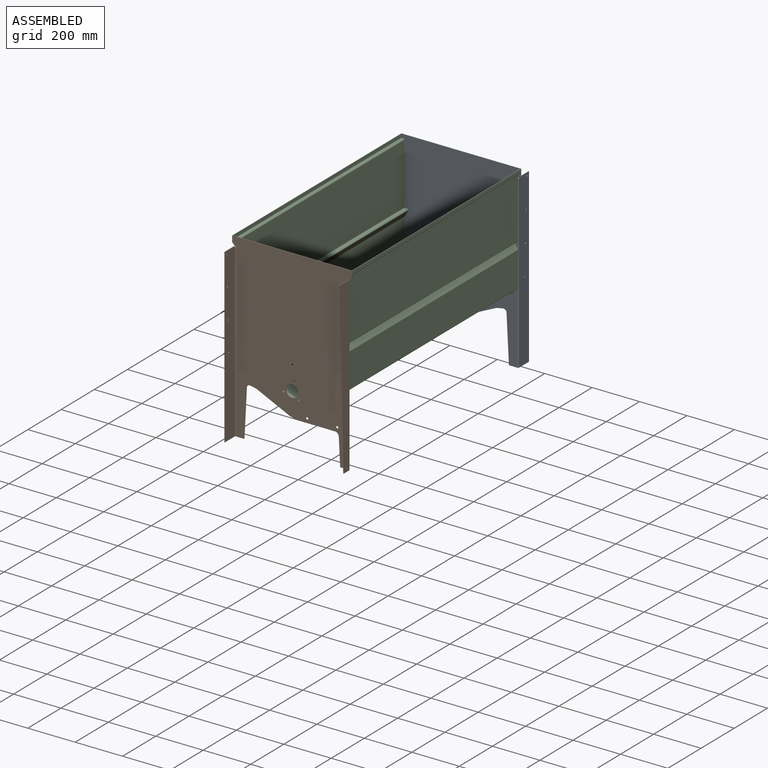
[diagram: assembled view]
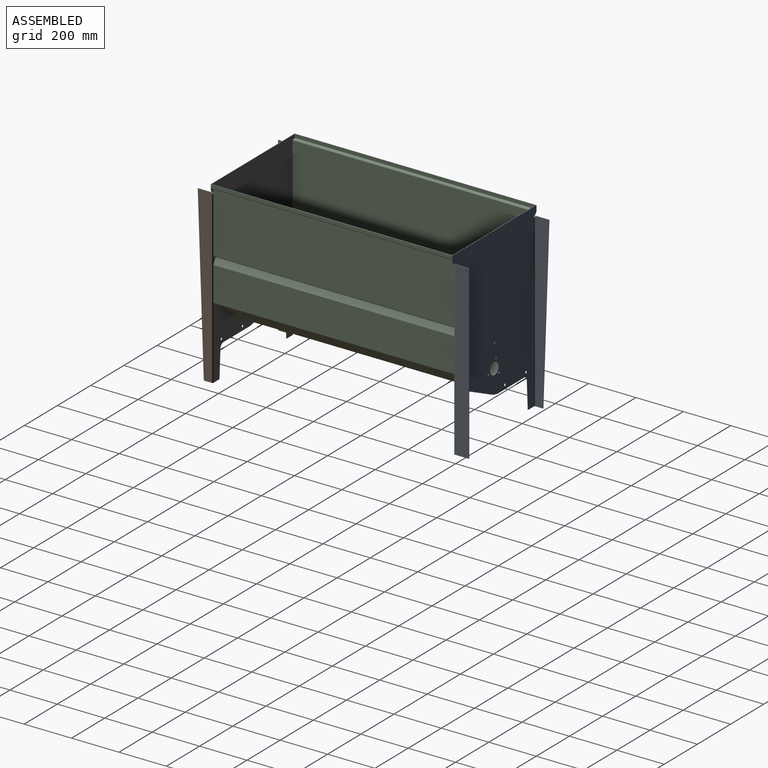
[diagram: assembled view, second angle]
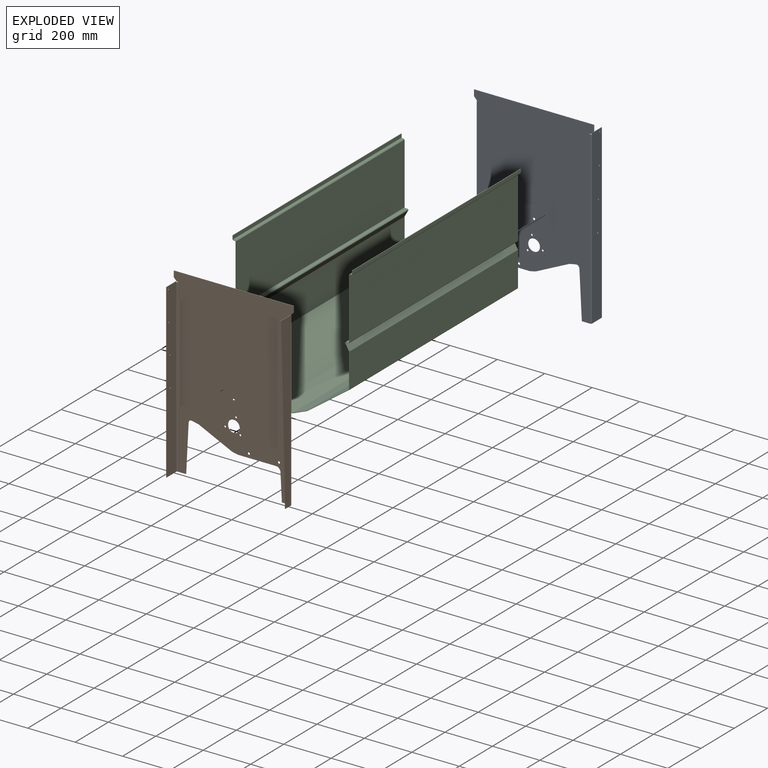
[diagram: exploded view]
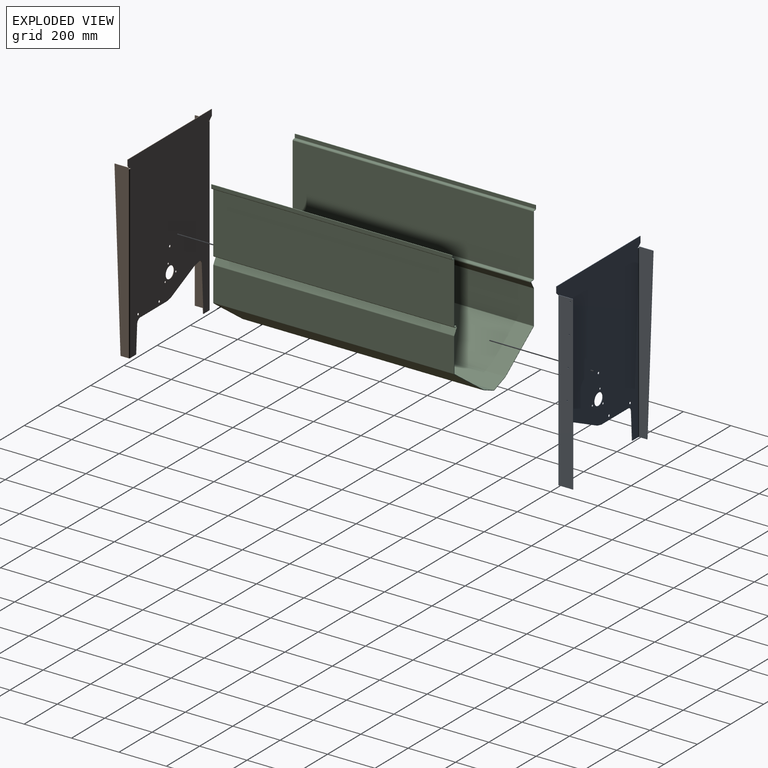
[diagram: exploded view, second angle]
ASSEMBLY  parts=3 mates=2
PART A: 55 faces, bbox 505.7x63.5x762 mm
  f0: plane 12.83x12.83mm, normal (0.71,0,-0.71), area 36.9mm2, adj f1,f2,f17,f30
  f1: plane 762x505.71mm, normal (0,1,0), area 300318.1mm2, adj f0,f3,f4,f5,f6,f7,f8,f9
  f2: plane 762x505.71mm, normal (0,-1,0), area 300318.1mm2, adj f0,f3,f4,f5,f6,f7,f8,f9
  f3: plane 35.81x2.03mm, normal (0,0,-1), area 72.8mm2, adj f1,f2,f4,f42
  f4: plane 198.12x10.2mm, normal (-1,0,-0.05), area 403.1mm2, adj f1,f2,f3,f5
  f5: cylinder r=12.7mm len=15.16mm, axis (0,-1,0), area 44.3mm2, adj f1,f2,f4,f6
  f6: plane 27.04x5.38mm, normal (0.2,0,-0.98), area 56mm2, adj f1,f2,f5,f7
  f7: plane 142.08x66.71mm, normal (0.43,0,-0.91), area 318.9mm2, adj f1,f2,f6,f8
  f8: plane 22.64x5.04mm, normal (0.22,0,-0.98), area 47.1mm2, adj f1,f2,f7,f9
  f9: cylinder r=19.05mm len=4.14mm, axis (0,-1,0), area 8.5mm2, adj f1,f2,f8,f10
  f10: plane 158.95x2.03mm, normal (0,0,-1), area 323mm2, adj f1,f2,f9,f11
  f11: cylinder r=19.05mm len=19.02mm, axis (0,-1,0), area 58.8mm2, adj f1,f2,f10,f12
  f12: plane 114.26x5.9mm, normal (1,0,-0.05), area 232.5mm2, adj f1,f2,f11,f13
  f13: plane 35.81x2.03mm, normal (0,0,-1), area 72.8mm2, adj f1,f2,f12,f51
  f14: plane 13.03x11.98mm, normal (-0.74,0,-0.68), area 36mm2, adj f1,f2,f15,f25
  f15: plane 25.4x2.03mm, normal (-1,0,0), area 51.6mm2, adj f1,f2,f14,f16
  f16: plane 505.71x2.03mm, normal (0,0,1), area 1027.6mm2, adj f1,f2,f15,f17
  f17: plane 25.4x2.03mm, normal (1,0,0), area 51.6mm2, adj f0,f1,f2,f16
  f18: cylinder r=4.83mm len=9.65mm, axis (0,-1,0), area 61.6mm2, adj f1,f2
  f19: cylinder r=4mm len=8mm, axis (0,-1,0), area 51.1mm2, adj f1,f2
  f20: cylinder r=4mm len=8mm, axis (0,-1,0), area 51.1mm2, adj f1,f2
  f21: cylinder r=4mm len=8mm, axis (0,-1,0), area 51.1mm2, adj f1,f2
  f22: cylinder r=25.4mm len=50.8mm, axis (0,-1,0), area 324.3mm2, adj f1,f2
  f23: cylinder r=4.83mm len=9.65mm, axis (0,-1,0), area 61.6mm2, adj f1,f2
  f24: cylinder r=4.83mm len=9.65mm, axis (0,-1,0), area 61.6mm2, adj f1,f2
  f25: plane 4.27x2.03mm, normal (0,0,-1), area 8.7mm2, adj f1,f2,f14,f26
  f26: cylinder r=1.08mm len=2.16mm, axis (0,-1,0), area 6.9mm2, adj f1,f2,f25,f27
  f27: plane 2.29x2.03mm, normal (0,0,1), area 4.6mm2, adj f1,f2,f26,f52
  f28: plane 2.29x2.03mm, normal (0,0,1), area 4.6mm2, adj f1,f2,f29,f41
  f29: cylinder r=1.08mm len=2.16mm, axis (0,-1,0), area 6.9mm2, adj f1,f2,f28,f30
  f30: plane 4.45x2.03mm, normal (0,0,-1), area 9mm2, adj f0,f1,f2,f29
  f31: plane 4.32x2.03mm, normal (0,-1,0), area 8.8mm2, adj f38,f39,f40,f41
  f32: plane 725.93x2.03mm, normal (0,1,0), area 1475.1mm2, adj f33,f38,f39,f40
  f33: plane 59.18x2.03mm, normal (0,0,-1), area 120.3mm2, adj f32,f39,f40,f42
  f34: cylinder r=2.54mm len=5.08mm, axis (-1,0,0), area 32.4mm2, adj f39,f40
  f35: cylinder r=2.54mm len=5.08mm, axis (-1,0,0), area 32.4mm2, adj f39,f40
  f36: cylinder r=2.54mm len=5.08mm, axis (-1,0,0), area 32.4mm2, adj f39,f40
  f37: cylinder r=2.54mm len=5.08mm, axis (-1,0,0), area 32.4mm2, adj f39,f40
  f38: plane 59.18x2.03mm, normal (0,0,1), area 120.3mm2, adj f31,f32,f39,f40
  f39: plane 725.93x59.18mm, normal (-1,0,0), area 42881mm2, adj f31,f32,f33,f34,f35,f36,f37,f38
  f40: plane 725.93x59.18mm, normal (1,0,0), area 42881mm2, adj f31,f32,f33,f34,f35,f36,f37,f38
  f41: plane 4.32x4.32mm, normal (0,0,1), area 10.5mm2, adj f28,f31,f43,f44
  f42: plane 4.32x4.32mm, normal (0,0,-1), area 10.5mm2, adj f3,f33,f43,f44
  f43: cylinder r=4.32mm len=721.61mm, axis (0,0,1), area 4894.5mm2, adj f2,f40,f41,f42
  f44: cylinder r=2.29mm len=721.61mm, axis (0,0,1), area 2591.2mm2, adj f1,f39,f41,f42
  f45: plane 4.69x2.03mm, normal (0,-1,0), area 9.5mm2, adj f48,f49,f50,f52
  f46: plane 33.78x2.03mm, normal (0,0,-1), area 68.6mm2, adj f47,f49,f50,f51
  f47: plane 726.11x25.4mm, normal (0,1,-0.03), area 1476.4mm2, adj f46,f48,f49,f50
  f48: plane 59.18x2.03mm, normal (0,0,1), area 120.3mm2, adj f45,f47,f49,f50
  f49: plane 726.11x59.18mm, normal (1,0,0), area 33751mm2, adj f45,f46,f47,f48,f54
  f50: plane 726.11x59.18mm, normal (-1,0,0), area 33751mm2, adj f45,f46,f47,f48,f53
  f51: plane 4.32x4.32mm, normal (0,0,-1), area 10.5mm2, adj f13,f46,f53,f54
  f52: plane 4.32x4.32mm, normal (0,0,1), area 10.5mm2, adj f27,f45,f53,f54
  f53: cylinder r=4.32mm len=721.42mm, axis (0,0,-1), area 4893.1mm2, adj f2,f50,f51,f52
  f54: cylinder r=2.29mm len=721.42mm, axis (0,0,-1), area 2590.5mm2, adj f1,f49,f51,f52
PART B: same geometry as A
PART C: 126 faces, bbox 505.7x1016x611.5 mm
  f0: plane 256.29x2.03mm, normal (0,-1,0), area 520.8mm2, adj f2,f3,f9,f38
  f1: plane 256.29x2.03mm, normal (0,1,0), area 520.8mm2, adj f2,f3,f8,f37
  f2: plane 1016x256.29mm, normal (-1,0,0), area 260386.6mm2, adj f0,f1,f10,f40
  f3: plane 1016x256.29mm, normal (1,0,0), area 260386.6mm2, adj f0,f1,f11,f39
  f4: plane 9.29x2.03mm, normal (0,-1,0), area 18.9mm2, adj f6,f7,f9,f13
  f5: plane 9.29x2.03mm, normal (0,1,0), area 18.9mm2, adj f6,f7,f8,f12
  f6: plane 1016x9.29mm, normal (0,0,-1), area 9433.6mm2, adj f4,f5,f10,f15
  f7: plane 1016x9.29mm, normal (0,0,1), area 9433.6mm2, adj f4,f5,f11,f14
  f8: plane 4.32x4.32mm, normal (0,1,0), area 10.5mm2, adj f1,f5,f10,f11
  f9: plane 4.32x4.32mm, normal (0,-1,0), area 10.5mm2, adj f0,f4,f10,f11
  f10: cylinder r=4.32mm len=1016mm, axis (0,1,0), area 6891.2mm2, adj f2,f6,f8,f9
  f11: cylinder r=2.29mm len=1016mm, axis (0,1,0), area 3648.3mm2, adj f3,f7,f8,f9
  f12: plane 6.48x4.32mm, normal (0,1,0), area 14.1mm2, adj f5,f14,f15,f17
  f13: plane 6.48x4.32mm, normal (0,-1,0), area 14.1mm2, adj f4,f14,f15,f16
  f14: cylinder r=4.32mm len=1016mm, axis (0,1,0), area 9188.3mm2, adj f7,f12,f13,f19
  f15: cylinder r=2.29mm len=1016mm, axis (0,1,0), area 4864.4mm2, adj f6,f12,f13,f18
  f16: plane 27x16.76mm, normal (0,-1,0), area 61mm2, adj f13,f18,f19,f21
  f17: plane 27x16.76mm, normal (0,1,0), area 61mm2, adj f12,f18,f19,f20
  f18: plane 1016x25.99mm, normal (-0.87,0,0.5), area 30488.6mm2, adj f15,f16,f17,f22
  f19: plane 1016x25.99mm, normal (0.87,0,-0.5), area 30488.6mm2, adj f14,f16,f17,f23
  f20: plane 2.34x2.16mm, normal (0,1,0), area 3.5mm2, adj f17,f22,f23,f42
  f21: plane 2.34x2.16mm, normal (0,-1,0), area 3.5mm2, adj f16,f22,f23,f41
  f22: cylinder r=4.32mm len=1016mm, axis (0,1,0), area 2297.1mm2, adj f18,f20,f21,f43
  f23: cylinder r=2.29mm len=1016mm, axis (0,1,0), area 1216.1mm2, adj f19,f20,f21,f44
  f24: plane 14.22x2.03mm, normal (0,-1,0), area 28.9mm2, adj f25,f27,f28,f30
  f25: plane 1016x2.03mm, normal (0,0,1), area 2064.5mm2, adj f24,f26,f27,f28
  f26: plane 14.22x2.03mm, normal (0,1,0), area 28.9mm2, adj f25,f27,f28,f29
  f27: plane 1016x14.22mm, normal (-1,0,0), area 14451.6mm2, adj f24,f25,f26,f31
  f28: plane 1016x14.22mm, normal (1,0,0), area 14451.6mm2, adj f24,f25,f26,f32
  f29: plane 4.32x4.32mm, normal (0,1,0), area 10.5mm2, adj f26,f31,f32,f34
  f30: plane 4.32x4.32mm, normal (0,-1,0), area 10.5mm2, adj f24,f31,f32,f33
  f31: cylinder r=4.32mm len=1016mm, axis (0,1,0), area 6891.2mm2, adj f27,f29,f30,f35
  f32: cylinder r=2.29mm len=1016mm, axis (0,1,0), area 3648.3mm2, adj f28,f29,f30,f36
  f33: plane 6.1x2.03mm, normal (0,-1,0), area 12.4mm2, adj f30,f35,f36,f38
  f34: plane 6.1x2.03mm, normal (0,1,0), area 12.4mm2, adj f29,f35,f36,f37
  f35: plane 1016x6.1mm, normal (0,0,-1), area 6193.5mm2, adj f31,f33,f34,f40
  f36: plane 1016x6.1mm, normal (0,0,1), area 6193.5mm2, adj f32,f33,f34,f39
  f37: plane 4.32x4.32mm, normal (0,1,0), area 10.5mm2, adj f1,f34,f39,f40
  f38: plane 4.32x4.32mm, normal (0,-1,0), area 10.5mm2, adj f0,f33,f39,f40
  f39: cylinder r=4.32mm len=1016mm, axis (0,1,0), area 6891.2mm2, adj f3,f36,f37,f38
  f40: cylinder r=2.29mm len=1016mm, axis (0,1,0), area 3648.3mm2, adj f2,f35,f37,f38
  f41: plane 143.05x2.03mm, normal (0,-1,0), area 290.7mm2, adj f21,f43,f44,f46
  f42: plane 143.05x2.03mm, normal (0,1,0), area 290.7mm2, adj f20,f43,f44,f45
  f43: plane 1016x143.05mm, normal (-1,0,0), area 145335.2mm2, adj f22,f41,f42,f47
  f44: plane 1016x143.05mm, normal (1,0,0), area 145335.2mm2, adj f23,f41,f42,f48
  f45: plane 3.46x2.95mm, normal (0,1,0), area 6.2mm2, adj f42,f47,f48,f50
  f46: plane 3.46x2.95mm, normal (0,-1,0), area 6.2mm2, adj f41,f47,f48,f49
  f47: cylinder r=4.32mm len=1016mm, axis (0,1,0), area 4075.5mm2, adj f43,f45,f46,f51
  f48: cylinder r=2.29mm len=1016mm, axis (0,1,0), area 2157.6mm2, adj f44,f45,f46,f52
  f49: plane 169.96x127.75mm, normal (0,-1,0), area 428.1mm2, adj f46,f51,f52,f70
  f50: plane 169.96x127.75mm, normal (0,1,0), area 428.1mm2, adj f45,f51,f52,f69
  f51: plane 1016x168.75mm, normal (-0.6,0,-0.8), area 214039.1mm2, adj f47,f49,f50,f71
  f52: plane 1016x168.75mm, normal (0.6,0,0.8), area 214039.1mm2, adj f48,f49,f50,f72
  f53: plane 2.14x1.66mm, normal (0,1,0), area 1.6mm2, adj f55,f56,f58,f74
  f54: plane 2.14x1.66mm, normal (0,-1,0), area 1.6mm2, adj f55,f56,f57,f73
  f55: cylinder r=4.32mm len=1016mm, axis (0,1,0), area 1039.9mm2, adj f53,f54,f59,f75
  f56: cylinder r=2.29mm len=1016mm, axis (0,1,0), area 550.6mm2, adj f53,f54,f60,f76
  f57: plane 61.83x26.84mm, normal (0,-1,0), area 134mm2, adj f54,f59,f60,f62
  f58: plane 61.83x26.84mm, normal (0,1,0), area 134mm2, adj f53,f59,f60,f61
  f59: plane 1016x61.06mm, normal (0.38,0,-0.93), area 67017.3mm2, adj f55,f57,f58,f63
  f60: plane 1016x61.06mm, normal (-0.38,0,0.93), area 67017.3mm2, adj f56,f57,f58,f64
  f61: plane 3.14x2.2mm, normal (0,1,0), area 5mm2, adj f58,f63,f64,f66
  f62: plane 3.14x2.2mm, normal (0,-1,0), area 5mm2, adj f57,f63,f64,f65
  f63: cylinder r=4.32mm len=1016mm, axis (0,1,0), area 3266.6mm2, adj f59,f61,f62,f67
  f64: cylinder r=2.29mm len=1016mm, axis (0,1,0), area 1729.4mm2, adj f60,f61,f62,f68
  f65: plane 67.76x26.88mm, normal (0,-1,0), area 145.4mm2, adj f62,f67,f68,f70
  f66: plane 67.76x26.88mm, normal (0,1,0), area 145.4mm2, adj f61,f67,f68,f69
  f67: plane 1016x67.05mm, normal (-0.35,0,-0.94), area 72698.1mm2, adj f63,f65,f66,f71
  f68: plane 1016x67.05mm, normal (0.35,0,0.94), area 72698.1mm2, adj f64,f65,f66,f72
  f69: plane 2.22x1.79mm, normal (0,1,0), area 1.9mm2, adj f50,f66,f71,f72
  f70: plane 2.22x1.79mm, normal (0,-1,0), area 1.9mm2, adj f49,f65,f71,f72
  f71: cylinder r=4.32mm len=1016mm, axis (0,1,0), area 1251.6mm2, adj f51,f67,f69,f70
  f72: cylinder r=2.29mm len=1016mm, axis (0,1,0), area 662.6mm2, adj f52,f68,f69,f70
  f73: plane 176.01x127.8mm, normal (0,-1,0), area 438.1mm2, adj f54,f75,f76,f78
  f74: plane 176.01x127.8mm, normal (0,1,0), area 438.1mm2, adj f53,f75,f76,f77
  f75: plane 1016x174.82mm, normal (0.59,0,-0.81), area 219036mm2, adj f55,f73,f74,f79
  f76: plane 1016x174.82mm, normal (-0.59,0,0.81), area 219036mm2, adj f56,f73,f74,f80
  f77: plane 3.5x2.98mm, normal (0,1,0), area 6.3mm2, adj f74,f79,f80,f82
  f78: plane 3.5x2.98mm, normal (0,-1,0), area 6.3mm2, adj f73,f79,f80,f81
  f79: cylinder r=4.32mm len=1016mm, axis (0,1,0), area 4148.9mm2, adj f75,f77,f78,f83
  f80: cylinder r=2.29mm len=1016mm, axis (0,1,0), area 2196.5mm2, adj f76,f77,f78,f84
  f81: plane 143.02x2.03mm, normal (0,-1,0), area 290.6mm2, adj f78,f83,f84,f102
  f82: plane 143.02x2.03mm, normal (0,1,0), area 290.6mm2, adj f77,f83,f84,f101
  f83: plane 1016x143.02mm, normal (1,0,0), area 145310.8mm2, adj f79,f81,f82,f103
  f84: plane 1016x143.02mm, normal (-1,0,0), area 145310.8mm2, adj f80,f81,f82,f104
  f85: plane 9.29x2.03mm, normal (0,-1,0), area 18.9mm2, adj f87,f88,f90,f94
  f86: plane 9.29x2.03mm, normal (0,1,0), area 18.9mm2, adj f87,f88,f89,f93
  f87: plane 1016x9.29mm, normal (0,0,-1), area 9433.6mm2, adj f85,f86,f91,f96
  f88: plane 1016x9.29mm, normal (0,0,1), area 9433.6mm2, adj f85,f86,f92,f95
  f89: plane 4.32x4.32mm, normal (0,1,0), area 10.5mm2, adj f86,f91,f92,f106
  f90: plane 4.32x4.32mm, normal (0,-1,0), area 10.5mm2, adj f85,f91,f92,f105
  f91: cylinder r=4.32mm len=1016mm, axis (0,1,0), area 6891.2mm2, adj f87,f89,f90,f107
  f92: cylinder r=2.29mm len=1016mm, axis (0,1,0), area 3648.3mm2, adj f88,f89,f90,f108
  f93: plane 6.48x4.32mm, normal (0,1,0), area 14.1mm2, adj f86,f95,f96,f98
  f94: plane 6.48x4.32mm, normal (0,-1,0), area 14.1mm2, adj f85,f95,f96,f97
  f95: cylinder r=4.32mm len=1016mm, axis (0,1,0), area 9188.3mm2, adj f88,f93,f94,f100
  f96: cylinder r=2.29mm len=1016mm, axis (0,1,0), area 4864.4mm2, adj f87,f93,f94,f99
  f97: plane 27x16.76mm, normal (0,-1,0), area 61mm2, adj f94,f99,f100,f102
  f98: plane 27x16.76mm, normal (0,1,0), area 61mm2, adj f93,f99,f100,f101
  f99: plane 1016x25.99mm, normal (0.87,0,0.5), area 30488.6mm2, adj f96,f97,f98,f103
  f100: plane 1016x25.99mm, normal (-0.87,0,-0.5), area 30488.6mm2, adj f95,f97,f98,f104
  f101: plane 2.34x2.16mm, normal (0,1,0), area 3.5mm2, adj f82,f98,f103,f104
  f102: plane 2.34x2.16mm, normal (0,-1,0), area 3.5mm2, adj f81,f97,f103,f104
  f103: cylinder r=4.32mm len=1016mm, axis (0,1,0), area 2297.1mm2, adj f83,f99,f101,f102
  f104: cylinder r=2.29mm len=1016mm, axis (0,1,0), area 1216.1mm2, adj f84,f100,f101,f102
  f105: plane 256.29x2.03mm, normal (0,-1,0), area 520.8mm2, adj f90,f107,f108,f123
  f106: plane 256.29x2.03mm, normal (0,1,0), area 520.8mm2, adj f89,f107,f108,f122
  f107: plane 1016x256.29mm, normal (1,0,0), area 260386.6mm2, adj f91,f105,f106,f125
  f108: plane 1016x256.29mm, normal (-1,0,0), area 260386.6mm2, adj f92,f105,f106,f124
  f109: plane 14.22x2.03mm, normal (0,-1,0), area 28.9mm2, adj f111,f112,f113,f115
  f110: plane 14.22x2.03mm, normal (0,1,0), area 28.9mm2, adj f111,f112,f113,f114
  f111: plane 1016x2.03mm, normal (0,0,1), area 2064.5mm2, adj f109,f110,f112,f113
  f112: plane 1016x14.22mm, normal (1,0,0), area 14451.6mm2, adj f109,f110,f111,f116
  f113: plane 1016x14.22mm, normal (-1,0,0), area 14451.6mm2, adj f109,f110,f111,f117
  f114: plane 4.32x4.32mm, normal (0,1,0), area 10.5mm2, adj f110,f116,f117,f119
  f115: plane 4.32x4.32mm, normal (0,-1,0), area 10.5mm2, adj f109,f116,f117,f118
  f116: cylinder r=4.32mm len=1016mm, axis (0,1,0), area 6891.2mm2, adj f112,f114,f115,f120
  f117: cylinder r=2.29mm len=1016mm, axis (0,1,0), area 3648.3mm2, adj f113,f114,f115,f121
  f118: plane 6.1x2.03mm, normal (0,-1,0), area 12.4mm2, adj f115,f120,f121,f123
  f119: plane 6.1x2.03mm, normal (0,1,0), area 12.4mm2, adj f114,f120,f121,f122
  f120: plane 1016x6.1mm, normal (0,0,-1), area 6193.5mm2, adj f116,f118,f119,f125
  f121: plane 1016x6.1mm, normal (0,0,1), area 6193.5mm2, adj f117,f118,f119,f124
  f122: plane 4.32x4.32mm, normal (0,1,0), area 10.5mm2, adj f106,f119,f124,f125
  f123: plane 4.32x4.32mm, normal (0,-1,0), area 10.5mm2, adj f105,f118,f124,f125
  f124: cylinder r=4.32mm len=1016mm, axis (0,1,0), area 6891.2mm2, adj f108,f121,f122,f123
  f125: cylinder r=2.29mm len=1016mm, axis (0,1,0), area 3648.3mm2, adj f107,f120,f122,f123
PLACE A t=(-2264.34,-609.34,1111.58)mm
PLACE B rot(axis=(0,0,-1),180deg) t=(-2345.17,-1629.4,1111.58)mm
PLACE C t=(-2190.5,-611.37,1098.99)mm
MATE fastened B.f16 <-> C.f111  axis (0,0,1) through (-2051.9,-1627.37,1411.38)mm
MATE fastened C.f111 <-> A.f16  axis (0,0,1) through (-2051.9,-611.37,1411.38)mm
